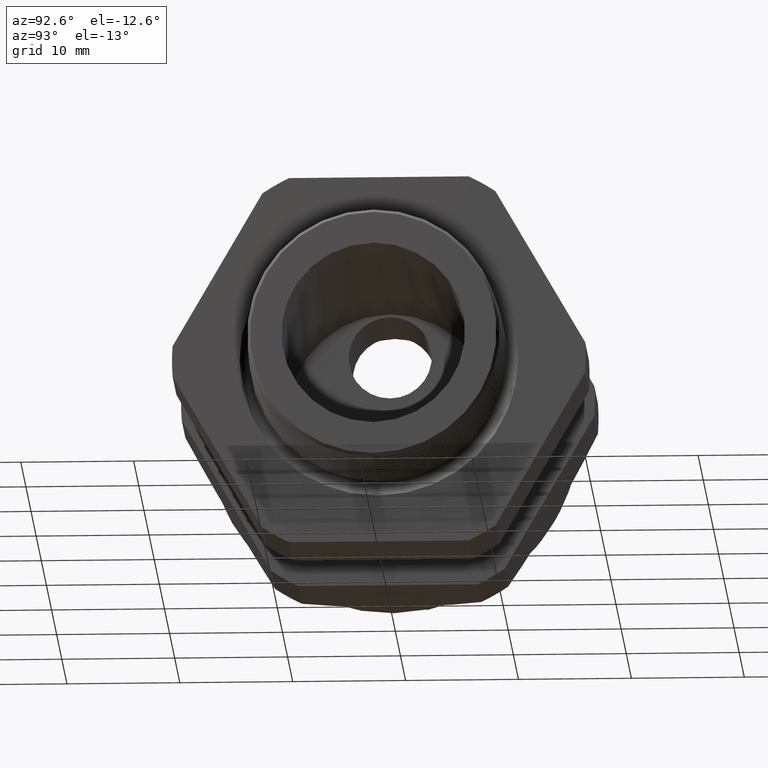
[diagram: clean part render]
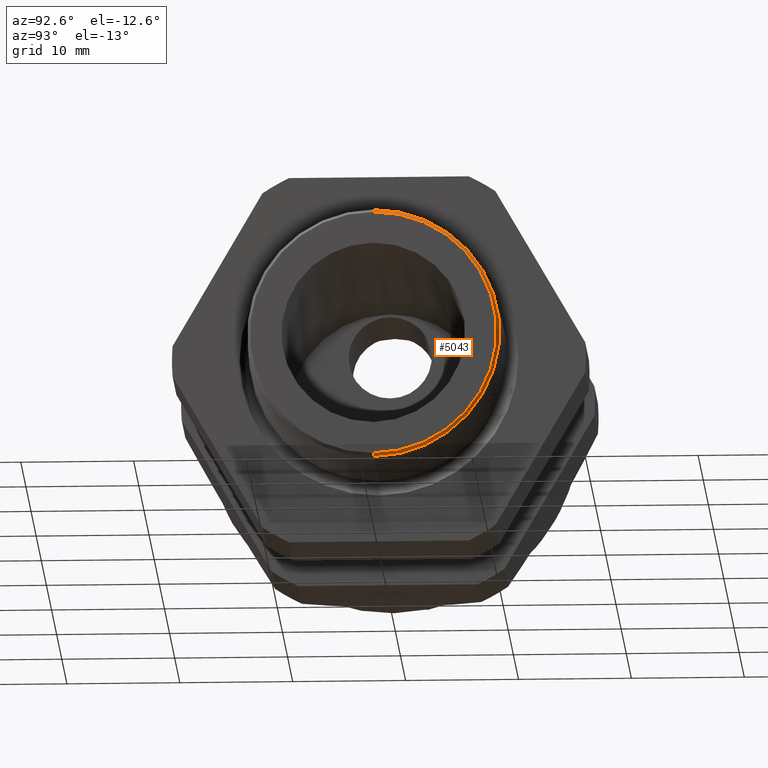
[diagram: same view with one face highlighted and labeled with its STEP entity id]
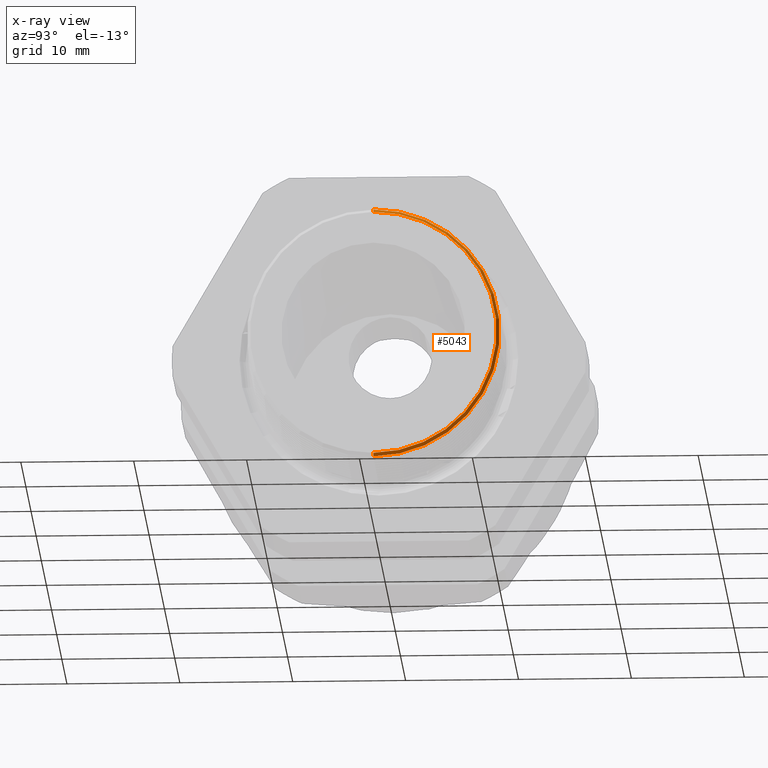
[diagram: x-ray of the same camera — body ghosted, the highlighted face saturated]
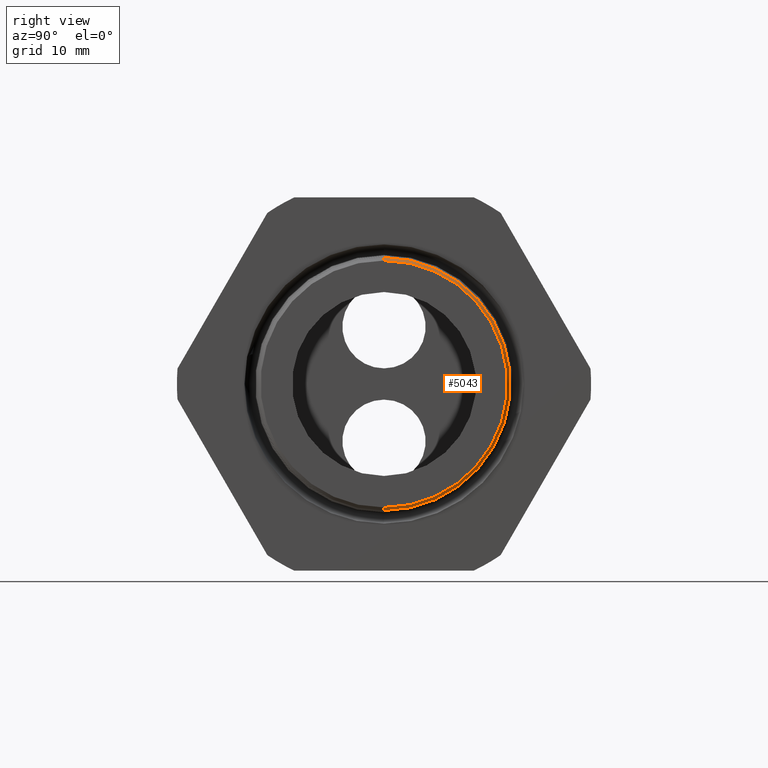
[diagram: same view with one face highlighted and labeled with its STEP entity id]
A machine part, auxiliary view. The second image highlights one B-rep face of the part: STEP entity #5043.
The next image is the same camera in x-ray: the body ghosted, the highlighted face saturated — about 0% of this face is hidden behind the body in this view.
A second angle (right view) of the same face is appended — the face is thin or edge-on in the first view.
In plain terms, the highlighted conical surface has half-angle 46.5 deg.
Its self-contained STEP definition (entity closure, byte-faithful):
#3400 = DIRECTION ( 'NONE',  ( -0.6883545756937586900, 0.0000000000000000000, 0.7253743710122830800 ) ) ;
#3401 = VECTOR ( 'NONE', #3400, 39.37007874015748900 ) ;
#3402 = CARTESIAN_POINT ( 'NONE',  ( 0.1200000000000000200, 0.0000000000000000000, 0.4301292403640452600 ) ) ;
#3407 = LINE ( 'NONE', #3402, #3401 ) ;
#3429 = DIRECTION ( 'NONE',  ( 0.0000000000000000000, 0.0000000000000000000, 1.000000000000000000 ) ) ;
#3430 = DIRECTION ( 'NONE',  ( -1.000000000000000000, 0.0000000000000000000, 0.0000000000000000000 ) ) ;
#3431 = CARTESIAN_POINT ( 'NONE',  ( 0.1200000000000000200, 0.0000000000000000000, 0.0000000000000000000 ) ) ;
#3432 = AXIS2_PLACEMENT_3D ( 'NONE', #3431, #3430, #3429 ) ;
#3433 = CONICAL_SURFACE ( 'NONE', #3432, 0.4301292403640452600, 0.8115781021773567100 ) ;
#3434 = FACE_OUTER_BOUND ( 'NONE', #5045, .T. ) ;
#3435 = DIRECTION ( 'NONE',  ( 0.0000000000000000000, 0.0000000000000000000, -1.000000000000000000 ) ) ;
#3436 = DIRECTION ( 'NONE',  ( 1.000000000000000000, 0.0000000000000000000, 0.0000000000000000000 ) ) ;
#3437 = CARTESIAN_POINT ( 'NONE',  ( 0.1200000000000000200, 0.0000000000000000000, 0.0000000000000000000 ) ) ;
#3438 = AXIS2_PLACEMENT_3D ( 'NONE', #3437, #3436, #3435 ) ;
#3439 = CIRCLE ( 'NONE', #3438, 0.4301292403640452600 ) ;
#3440 = DIRECTION ( 'NONE',  ( -0.6883545756937586900, 8.883274016437172300E-017, -0.7253743710122830800 ) ) ;
#3441 = VECTOR ( 'NONE', #3440, 39.37007874015748900 ) ;
#3442 = CARTESIAN_POINT ( 'NONE',  ( 0.1200000000000000200, 5.267563974315105800E-017, -0.4301292403640452600 ) ) ;
#3443 = LINE ( 'NONE', #3442, #3441 ) ;
#3444 = CARTESIAN_POINT ( 'NONE',  ( 0.1200000000000000200, 5.332067285935767100E-017, -0.4301292403640452600 ) ) ;
#3445 = CARTESIAN_POINT ( 'NONE',  ( 0.1100034267502447600, 5.397605562075697500E-017, -0.4406634305755528500 ) ) ;
#3446 = CARTESIAN_POINT ( 'NONE',  ( 0.1200000000000000200, 0.0000000000000000000, 0.4301292403640452600 ) ) ;
#3447 = DIRECTION ( 'NONE',  ( 0.0000000000000000000, 0.0000000000000000000, -1.000000000000000000 ) ) ;
#3448 = DIRECTION ( 'NONE',  ( -1.000000000000000000, 0.0000000000000000000, 0.0000000000000000000 ) ) ;
#3449 = CARTESIAN_POINT ( 'NONE',  ( 0.1100034267502447600, 0.0000000000000000000, 0.0000000000000000000 ) ) ;
#3450 = AXIS2_PLACEMENT_3D ( 'NONE', #3449, #3448, #3447 ) ;
#3451 = CIRCLE ( 'NONE', #3450, 0.4406634305755528500 ) ;
#3452 = CARTESIAN_POINT ( 'NONE',  ( 0.1100034267502447600, 0.0000000000000000000, 0.4406634305755528500 ) ) ;
#5025 = EDGE_CURVE ( 'NONE', #5035, #5033, #3407, .T. ) ;
#5028 = ORIENTED_EDGE ( 'NONE', *, *, #5025, .F. ) ;
#5033 = VERTEX_POINT ( 'NONE', #3452 ) ;
#5034 = EDGE_CURVE ( 'NONE', #5033, #5036, #3451, .T. ) ;
#5035 = VERTEX_POINT ( 'NONE', #3446 ) ;
#5036 = VERTEX_POINT ( 'NONE', #3445 ) ;
#5037 = ORIENTED_EDGE ( 'NONE', *, *, #5041, .F. ) ;
#5038 = ORIENTED_EDGE ( 'NONE', *, *, #5040, .T. ) ;
#5039 = VERTEX_POINT ( 'NONE', #3444 ) ;
#5040 = EDGE_CURVE ( 'NONE', #5039, #5036, #3443, .T. ) ;
#5041 = EDGE_CURVE ( 'NONE', #5039, #5035, #3439, .T. ) ;
#5042 = ORIENTED_EDGE ( 'NONE', *, *, #5034, .F. ) ;
#5043 = ADVANCED_FACE ( 'NONE', ( #3434 ), #3433, .T. ) ;
#5045 = EDGE_LOOP ( 'NONE', ( #5037, #5038, #5042, #5028 ) ) ;